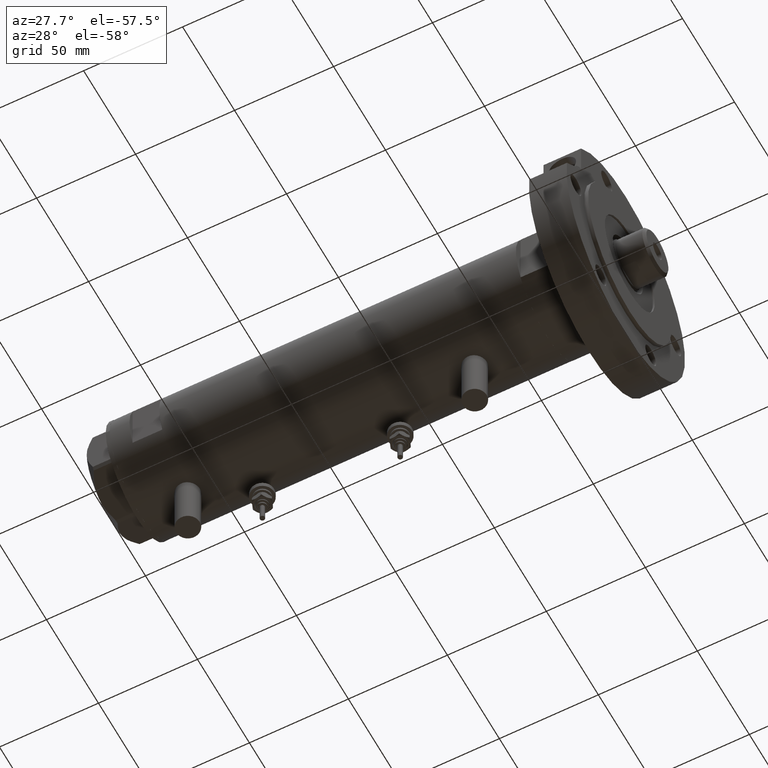
[diagram: clean part render]
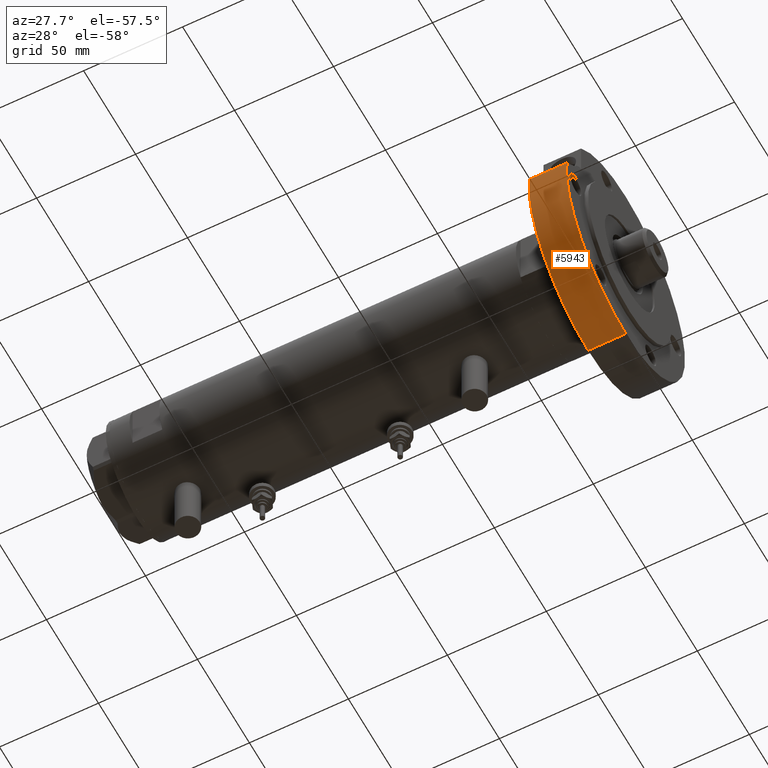
[diagram: same view with one face highlighted and labeled with its STEP entity id]
A machine part, auxiliary view. The second image highlights one B-rep face of the part: STEP entity #5943.
In plain terms, the highlighted cylindrical surface (partial cylindrical patch) has radius 57 mm, axis along (-1, -0, 0).
Its self-contained STEP definition (entity closure, byte-faithful):
#504 = ORIENTED_EDGE ( 'NONE', *, *, #874, .F. ) ;
#635 = VECTOR ( 'NONE', #1211, 1000.000000000000000 ) ;
#729 = VECTOR ( 'NONE', #6604, 1000.000000000000000 ) ;
#874 = EDGE_CURVE ( 'NONE', #4845, #6539, #2611, .T. ) ;
#1080 = DIRECTION ( 'NONE',  ( 1.000000000000000000, 0.000000000000000000, 0.000000000000000000 ) ) ;
#1153 = FACE_OUTER_BOUND ( 'NONE', #1845, .T. ) ;
#1205 = CARTESIAN_POINT ( 'NONE',  ( 0.000000000000000000, 0.000000000000000000, 0.000000000000000000 ) ) ;
#1211 = DIRECTION ( 'NONE',  ( -0.000000000000000000, -0.000000000000000000, 1.000000000000000000 ) ) ;
#1337 = CARTESIAN_POINT ( 'NONE',  ( 6.569366352211361004, 56.62016801220598694, 0.000000000000000000 ) ) ;
#1610 = CARTESIAN_POINT ( 'NONE',  ( 6.569366352211361004, 56.62016801220598694, 0.000000000000000000 ) ) ;
#1713 = ORIENTED_EDGE ( 'NONE', *, *, #5054, .F. ) ;
#1799 = CYLINDRICAL_SURFACE ( 'NONE', #4532, 57.00000000000000000 ) ;
#1845 = EDGE_LOOP ( 'NONE', ( #504, #5204, #1713, #4734 ) ) ;
#2308 = DIRECTION ( 'NONE',  ( 0.000000000000000000, 0.000000000000000000, 1.000000000000000000 ) ) ;
#2611 = LINE ( 'NONE', #6682, #729 ) ;
#2964 = DIRECTION ( 'NONE',  ( -0.000000000000000000, -0.000000000000000000, -1.000000000000000000 ) ) ;
#3079 = LINE ( 'NONE', #1337, #635 ) ;
#3338 = VERTEX_POINT ( 'NONE', #1610 ) ;
#3507 = VERTEX_POINT ( 'NONE', #6409 ) ;
#3867 = EDGE_CURVE ( 'NONE', #3338, #6539, #4303, .T. ) ;
#4303 = CIRCLE ( 'NONE', #5862, 57.00000000000000000 ) ;
#4502 = DIRECTION ( 'NONE',  ( 0.000000000000000000, 0.000000000000000000, 1.000000000000000000 ) ) ;
#4532 = AXIS2_PLACEMENT_3D ( 'NONE', #5217, #2964, #6452 ) ;
#4667 = DIRECTION ( 'NONE',  ( 1.000000000000000000, 0.000000000000000000, 0.000000000000000000 ) ) ;
#4734 = ORIENTED_EDGE ( 'NONE', *, *, #3867, .T. ) ;
#4845 = VERTEX_POINT ( 'NONE', #4881 ) ;
#4881 = CARTESIAN_POINT ( 'NONE',  ( -57.00000000000000000, 0.000000000000000000, 19.00000000000000000 ) ) ;
#5050 = CIRCLE ( 'NONE', #5544, 57.00000000000000000 ) ;
#5054 = EDGE_CURVE ( 'NONE', #3338, #3507, #3079, .T. ) ;
#5154 = CARTESIAN_POINT ( 'NONE',  ( 0.000000000000000000, 0.000000000000000000, 19.00000000000000000 ) ) ;
#5204 = ORIENTED_EDGE ( 'NONE', *, *, #6978, .F. ) ;
#5217 = CARTESIAN_POINT ( 'NONE',  ( 0.000000000000000000, 0.000000000000000000, 19.00000000000000000 ) ) ;
#5544 = AXIS2_PLACEMENT_3D ( 'NONE', #5154, #4502, #1080 ) ;
#5862 = AXIS2_PLACEMENT_3D ( 'NONE', #1205, #2308, #4667 ) ;
#5943 = ADVANCED_FACE ( 'NONE', ( #1153 ), #1799, .T. ) ;
#6409 = CARTESIAN_POINT ( 'NONE',  ( 6.569366352211361004, 56.62016801220598694, 19.00000000000000000 ) ) ;
#6452 = DIRECTION ( 'NONE',  ( -1.000000000000000000, 0.000000000000000000, 0.000000000000000000 ) ) ;
#6539 = VERTEX_POINT ( 'NONE', #7294 ) ;
#6604 = DIRECTION ( 'NONE',  ( -0.000000000000000000, -0.000000000000000000, -1.000000000000000000 ) ) ;
#6682 = CARTESIAN_POINT ( 'NONE',  ( -57.00000000000000000, 0.000000000000000000, 19.00000000000000000 ) ) ;
#6978 = EDGE_CURVE ( 'NONE', #3507, #4845, #5050, .T. ) ;
#7294 = CARTESIAN_POINT ( 'NONE',  ( -57.00000000000000000, 0.000000000000000000, 0.000000000000000000 ) ) ;